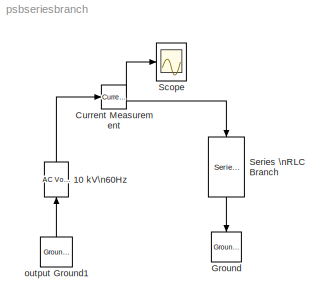
MODEL psbseriesbranch
KIND model
BLOCK [Reference] 10 kV\n60Hz  REF=powerlib2/Electrical\nSources/AC Voltage Source
  A = 10e3
  F = 60
  P = 0
  PSBOutputType = 1
  Ports = [1, 1]
  SourceBlock = powerlib2/Electrical\nSources/AC Voltage Source
  SourceType = AC Voltage Source
  Tag = PoWeRsYsTeMbLoCk
  mesure = None
  stime = 0
BLOCK [Reference] Current Measurement  REF=powerlib2/Measurements/Current Measurement
  PSBOutputType = 01
  PSBequivalent = 1
  Ports = [1, 2]
  SourceBlock = powerlib2/Measurements/Current Measurement
  SourceType = Current Measurement
  Tag = PoWeRsYsTeMmEaSuReMeNt
BLOCK [Reference] Ground  REF=powerlib2/Connectors/Ground (input)
  Ports = [1]
  SourceBlock = powerlib2/Connectors/Ground (input)
  SourceType = Ground
  Tag = PoWeRsYsTeMbLoCk
BLOCK [Scope] Scope
  DataFormat = Array
  DeleteFcn = simscope BlockIsBeingDestroyed
  NumInputPorts = 1
  Ports = [1]
  PostSaveFcn = simscope Save
  TickLabels = on
  TimeRange = 0.1
  YMax = 15
  YMin = -15
  ZoomMode = xonly
BLOCK [Reference] Series \nRLC Branch  REF=powerlib2/Elements/Series RLC Branch
  PSBOutputType = 1
  Ports = [1, 1]
  SourceBlock = powerlib2/Elements/Series RLC Branch
  SourceType = Series RLC Branch
  Tag = PoWeRsYsTeMbLoCk
  a = 1.27
  b = 107.42e-03
  c = 2.62e-06
  mesure = None
BLOCK [Reference] output Ground1  REF=powerlib2/Connectors/Ground (output)
  PSBOutputType = 1
  Ports = [0, 1]
  SourceBlock = powerlib2/Connectors/Ground (output)
  SourceType = Ground
  Tag = PoWeRsYsTeMbLoCk
LINE 10 kV\n60Hz:1 -> Current Measurement:1
LINE Current Measurement:1 -> Scope:1
LINE Current Measurement:2 -> Series \nRLC Branch:1
LINE Series \nRLC Branch:1 -> Ground:1
LINE output Ground1:1 -> 10 kV\n60Hz:1
